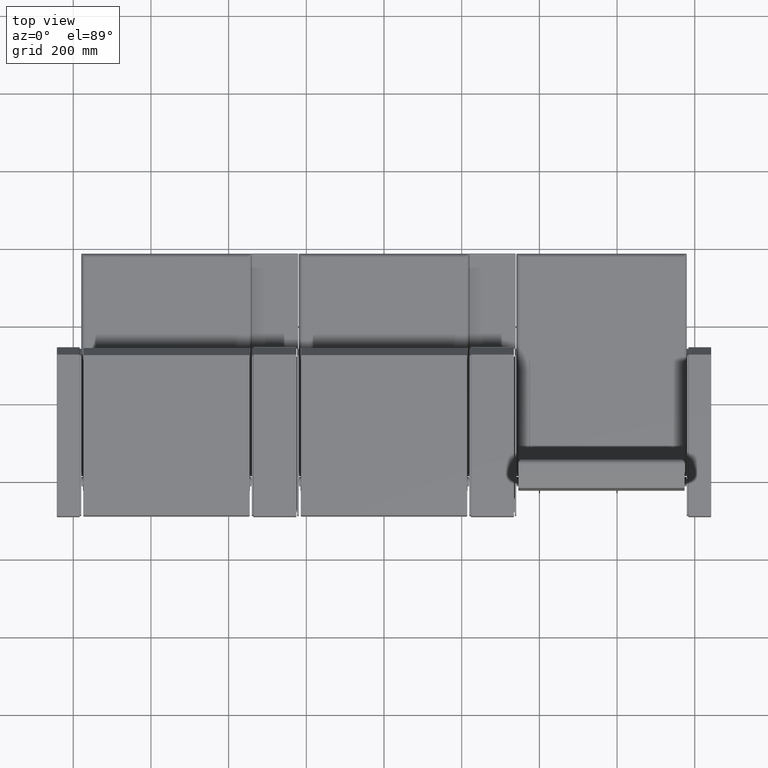
[diagram: clean part render]
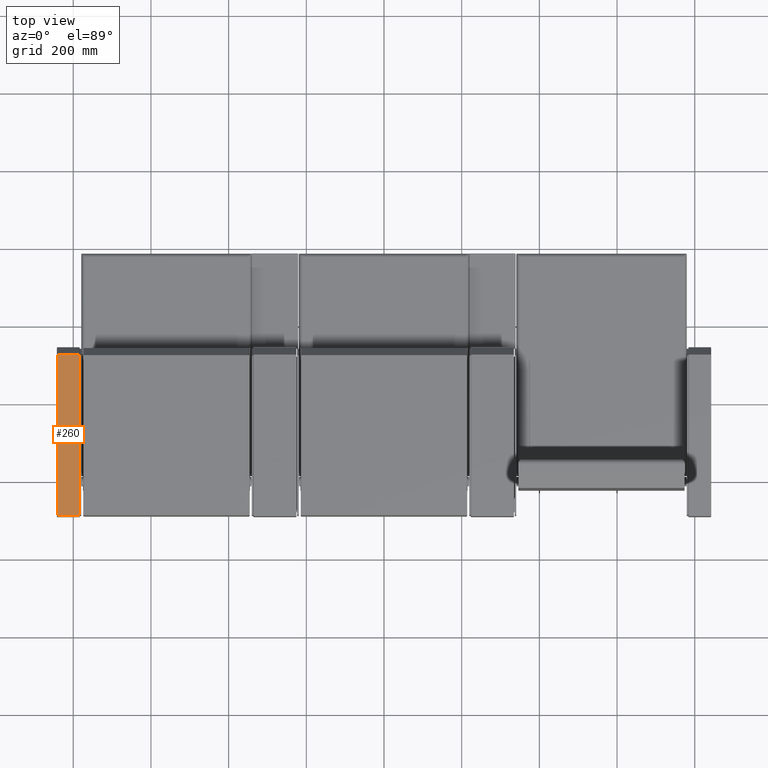
[diagram: same view with one face highlighted and labeled with its STEP entity id]
A machine part, top view. The second image highlights one B-rep face of the part: STEP entity #260.
In plain terms, the highlighted planar face has unit normal (0, -0.0872, -0.9962).
Its self-contained STEP definition (entity closure, byte-faithful):
#260 = ADVANCED_FACE ( 'NONE', ( #7687 ), #5486, .F. ) ;
#622 = VERTEX_POINT ( 'NONE', #4598 ) ;
#623 = VERTEX_POINT ( 'NONE', #4599 ) ;
#627 = VERTEX_POINT ( 'NONE', #4603 ) ;
#630 = VERTEX_POINT ( 'NONE', #4606 ) ;
#892 = ORIENTED_EDGE ( 'NONE', *, *, #7098, .T. ) ;
#893 = ORIENTED_EDGE ( 'NONE', *, *, #7097, .T. ) ;
#894 = ORIENTED_EDGE ( 'NONE', *, *, #7096, .T. ) ;
#895 = ORIENTED_EDGE ( 'NONE', *, *, #7095, .T. ) ;
#1621 = CARTESIAN_POINT ( 'NONE',  ( -27.25000000000000700, -92.26999999999996800, 21.99999999999998900 ) ) ;
#1656 = CARTESIAN_POINT ( 'NONE',  ( 29.25000000000000000, 324.6652994616207500, 22.00000000000003900 ) ) ;
#1658 = DIRECTION ( 'NONE',  ( -1.000000000000000000, 0.0000000000000000000, 0.0000000000000000000 ) ) ;
#1659 = DIRECTION ( 'NONE',  ( 0.0000000000000000000, -1.000000000000000000, -1.244748840663594400E-016 ) ) ;
#1660 = CARTESIAN_POINT ( 'NONE',  ( 29.25000000000000000, -90.08738299786145400, 21.99999999999998900 ) ) ;
#1661 = DIRECTION ( 'NONE',  ( 1.000000000000000000, -0.0000000000000000000, -0.0000000000000000000 ) ) ;
#1662 = CARTESIAN_POINT ( 'NONE',  ( 27.25000000000000400, 325.8199999999999900, 22.00000000000003900 ) ) ;
#1663 = DIRECTION ( 'NONE',  ( -0.0000000000000000000, 1.000000000000000000, 1.244748840663594400E-016 ) ) ;
#2015 = AXIS2_PLACEMENT_3D ( 'NONE', #5487, #5492, #5493 ) ;
#4464 = LINE ( 'NONE', #1621, #4475 ) ;
#4470 = LINE ( 'NONE', #1656, #4473 ) ;
#4473 = VECTOR ( 'NONE', #1658, 1000.000000000000000 ) ;
#4474 = LINE ( 'NONE', #1660, #4477 ) ;
#4475 = VECTOR ( 'NONE', #1659, 1000.000000000000000 ) ;
#4476 = LINE ( 'NONE', #1662, #4479 ) ;
#4477 = VECTOR ( 'NONE', #1661, 1000.000000000000000 ) ;
#4479 = VECTOR ( 'NONE', #1663, 1000.000000000000000 ) ;
#4598 = CARTESIAN_POINT ( 'NONE',  ( -27.25000000000000700, 324.6652994616207500, 22.00000000000003900 ) ) ;
#4599 = CARTESIAN_POINT ( 'NONE',  ( 27.25000000000000400, 324.6652994616207500, 22.00000000000003900 ) ) ;
#4603 = CARTESIAN_POINT ( 'NONE',  ( 27.25000000000000400, -90.08738299786144000, 21.99999999999998900 ) ) ;
#4606 = CARTESIAN_POINT ( 'NONE',  ( -27.25000000000000700, -90.08738299786144000, 21.99999999999998900 ) ) ;
#5094 = EDGE_LOOP ( 'NONE', ( #895, #894, #893, #892 ) ) ;
#5486 = PLANE ( 'NONE',  #2015 ) ;
#5487 = CARTESIAN_POINT ( 'NONE',  ( 29.25000000000000000, 325.8199999999999900, 22.00000000000003900 ) ) ;
#5492 = DIRECTION ( 'NONE',  ( 0.0000000000000000000, 1.244748840663594400E-016, -1.000000000000000000 ) ) ;
#5493 = DIRECTION ( 'NONE',  ( 0.0000000000000000000, 1.000000000000000000, 1.244748840663594400E-016 ) ) ;
#7095 = EDGE_CURVE ( 'NONE', #623, #622, #4470, .T. ) ;
#7096 = EDGE_CURVE ( 'NONE', #622, #630, #4464, .T. ) ;
#7097 = EDGE_CURVE ( 'NONE', #630, #627, #4474, .T. ) ;
#7098 = EDGE_CURVE ( 'NONE', #627, #623, #4476, .T. ) ;
#7687 = FACE_OUTER_BOUND ( 'NONE', #5094, .T. ) ;